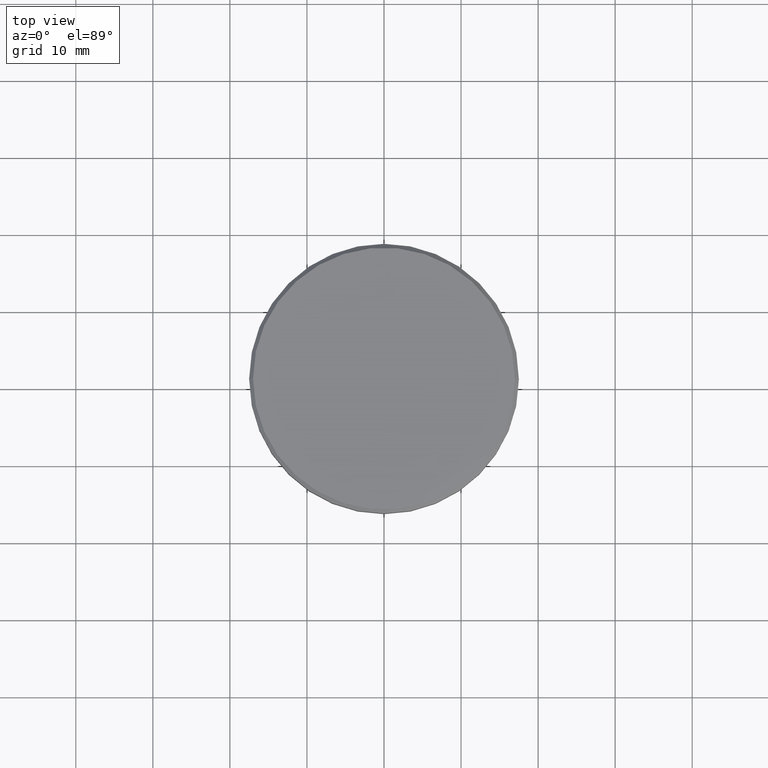
[diagram: clean part render]
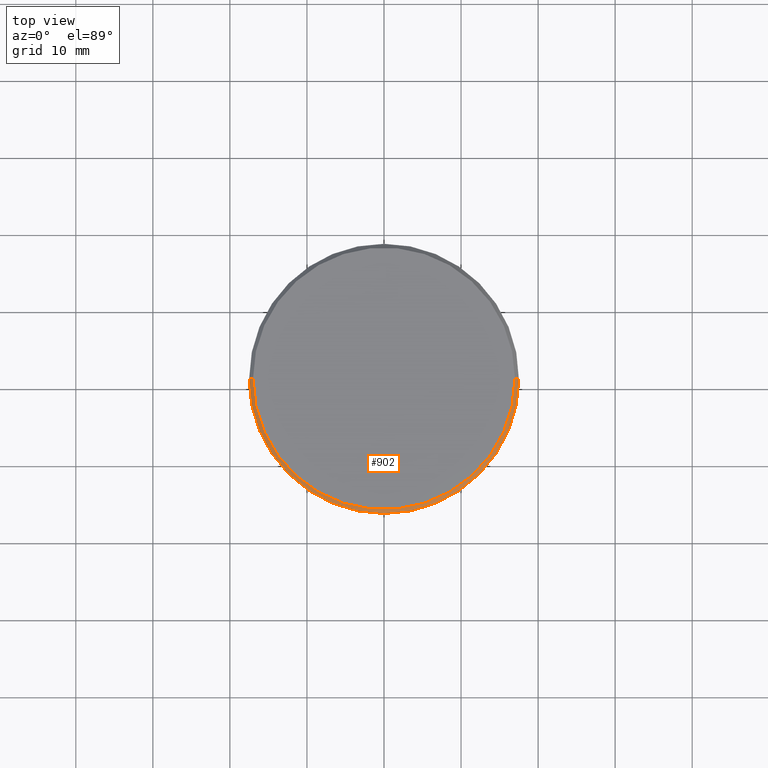
[diagram: same view with one face highlighted and labeled with its STEP entity id]
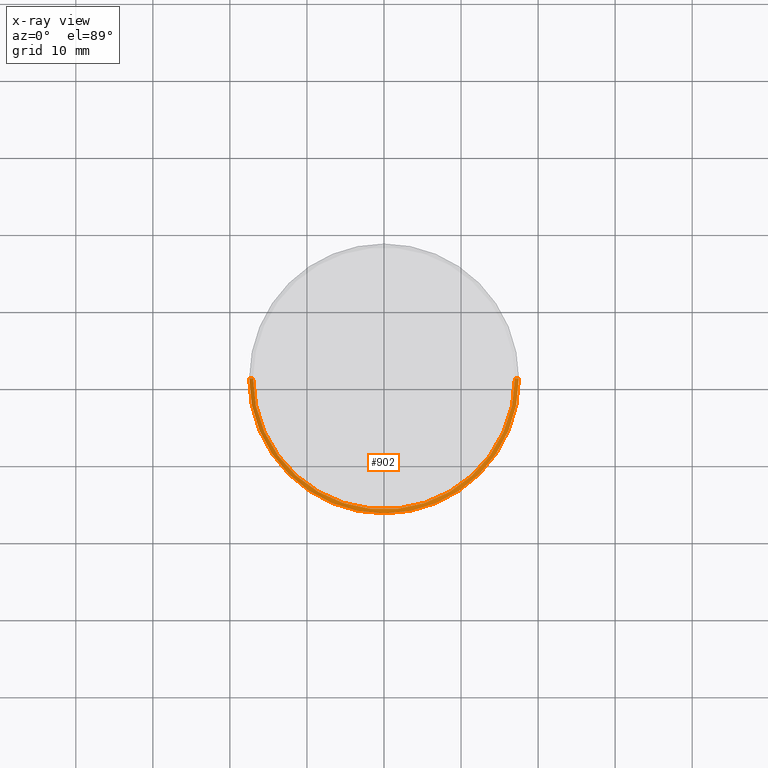
[diagram: x-ray of the same camera — body ghosted, the highlighted face saturated]
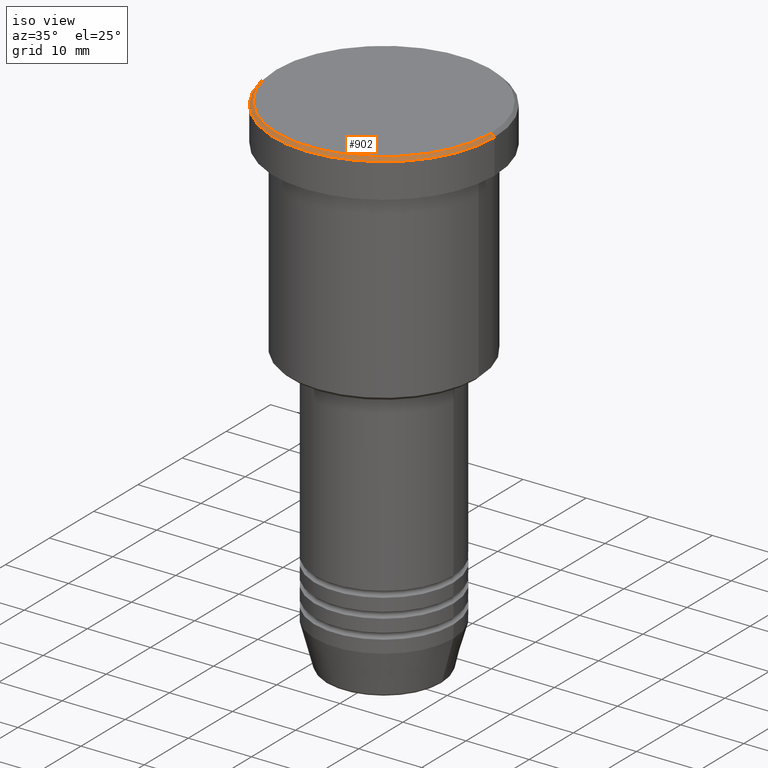
[diagram: same view with one face highlighted and labeled with its STEP entity id]
A machine part, top view. The second image highlights one B-rep face of the part: STEP entity #902.
The next image is the same camera in x-ray: the body ghosted, the highlighted face saturated — about 0% of this face is hidden behind the body in this view.
A second angle (iso view) of the same face is appended — the face is thin or edge-on in the first view.
In plain terms, the highlighted conical surface has half-angle 45 deg.
Its self-contained STEP definition (entity closure, byte-faithful):
#30 = ORIENTED_EDGE ( 'NONE', *, *, #656, .F. ) ;
#31 = DIRECTION ( 'NONE',  ( 1.000000000000000000, 0.000000000000000000, 0.000000000000000000 ) ) ;
#37 = CARTESIAN_POINT ( 'NONE',  ( 0.000000000000000000, 0.000000000000000000, 0.000000000000000000 ) ) ;
#44 = AXIS2_PLACEMENT_3D ( 'NONE', #1121, #121, #31 ) ;
#46 = EDGE_CURVE ( 'NONE', #1149, #240, #357, .T. ) ;
#108 = EDGE_CURVE ( 'NONE', #263, #1047, #1093, .T. ) ;
#121 = DIRECTION ( 'NONE',  ( -0.000000000000000000, -0.000000000000000000, 1.000000000000000000 ) ) ;
#164 = DIRECTION ( 'NONE',  ( 0.7071067811865378028, 8.659560562354814529E-17, -0.7071067811865573427 ) ) ;
#240 = VERTEX_POINT ( 'NONE', #323 ) ;
#263 = VERTEX_POINT ( 'NONE', #970 ) ;
#323 = CARTESIAN_POINT ( 'NONE',  ( -17.50000000000000000, 2.143131898507868248E-15, -0.4999999999999864553 ) ) ;
#347 = EDGE_LOOP ( 'NONE', ( #30, #845, #636, #497 ) ) ;
#357 = CIRCLE ( 'NONE', #1023, 17.50000000000000000 ) ;
#417 = DIRECTION ( 'NONE',  ( -1.000000000000000000, 0.000000000000000000, 0.000000000000000000 ) ) ;
#424 = DIRECTION ( 'NONE',  ( -0.7071067811865378028, 0.000000000000000000, -0.7071067811865573427 ) ) ;
#459 = EDGE_CURVE ( 'NONE', #263, #240, #885, .T. ) ;
#497 = ORIENTED_EDGE ( 'NONE', *, *, #46, .F. ) ;
#567 = VECTOR ( 'NONE', #164, 1000.000000000000000 ) ;
#589 = DIRECTION ( 'NONE',  ( 1.000000000000000000, 0.000000000000000000, 0.000000000000000000 ) ) ;
#634 = LINE ( 'NONE', #817, #567 ) ;
#636 = ORIENTED_EDGE ( 'NONE', *, *, #459, .T. ) ;
#656 = EDGE_CURVE ( 'NONE', #1047, #1149, #634, .T. ) ;
#746 = CONICAL_SURFACE ( 'NONE', #1078, 17.00000000000002842, 0.7853981633974346233 ) ;
#757 = CARTESIAN_POINT ( 'NONE',  ( -17.00000000000002842, 0.000000000000000000, 0.000000000000000000 ) ) ;
#761 = VECTOR ( 'NONE', #424, 1000.000000000000000 ) ;
#783 = CARTESIAN_POINT ( 'NONE',  ( 0.000000000000000000, 0.000000000000000000, -0.4999999999999864553 ) ) ;
#816 = CARTESIAN_POINT ( 'NONE',  ( 17.50000000000000000, 0.000000000000000000, -0.4999999999999864553 ) ) ;
#817 = CARTESIAN_POINT ( 'NONE',  ( 17.00000000000002842, 2.081899558550503830E-15, 0.000000000000000000 ) ) ;
#845 = ORIENTED_EDGE ( 'NONE', *, *, #108, .F. ) ;
#880 = DIRECTION ( 'NONE',  ( 0.000000000000000000, 0.000000000000000000, -1.000000000000000000 ) ) ;
#885 = LINE ( 'NONE', #757, #761 ) ;
#900 = CARTESIAN_POINT ( 'NONE',  ( 17.00000000000002842, 2.112515728529186039E-15, 0.000000000000000000 ) ) ;
#902 = ADVANCED_FACE ( 'NONE', ( #1123 ), #746, .T. ) ;
#970 = CARTESIAN_POINT ( 'NONE',  ( -17.00000000000002842, 0.000000000000000000, 0.000000000000000000 ) ) ;
#1023 = AXIS2_PLACEMENT_3D ( 'NONE', #783, #1125, #589 ) ;
#1047 = VERTEX_POINT ( 'NONE', #900 ) ;
#1078 = AXIS2_PLACEMENT_3D ( 'NONE', #37, #880, #417 ) ;
#1093 = CIRCLE ( 'NONE', #44, 17.00000000000002842 ) ;
#1121 = CARTESIAN_POINT ( 'NONE',  ( 0.000000000000000000, 0.000000000000000000, 0.000000000000000000 ) ) ;
#1123 = FACE_OUTER_BOUND ( 'NONE', #347, .T. ) ;
#1125 = DIRECTION ( 'NONE',  ( 0.000000000000000000, 0.000000000000000000, -1.000000000000000000 ) ) ;
#1149 = VERTEX_POINT ( 'NONE', #816 ) ;